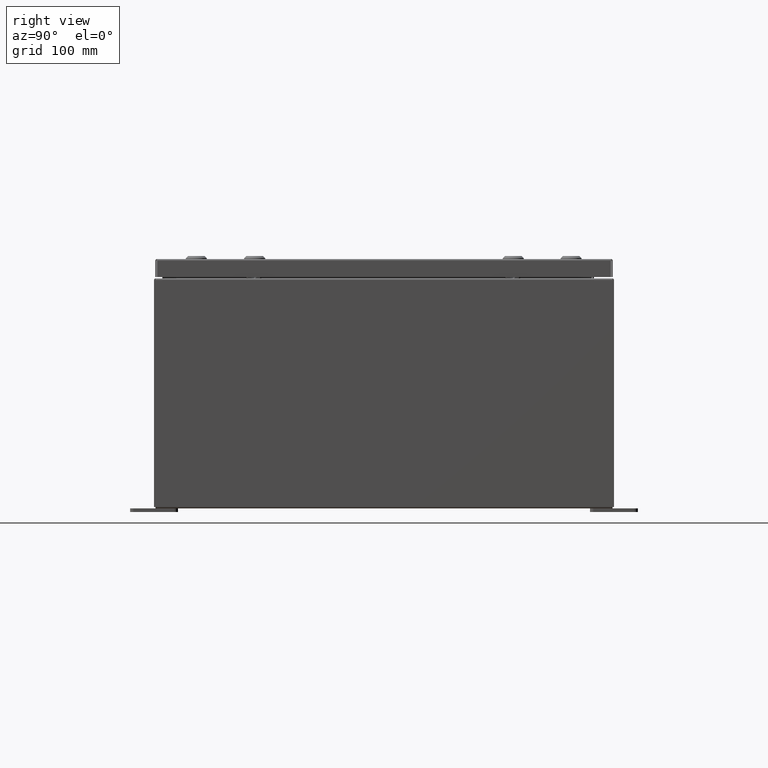
[diagram: clean part render]
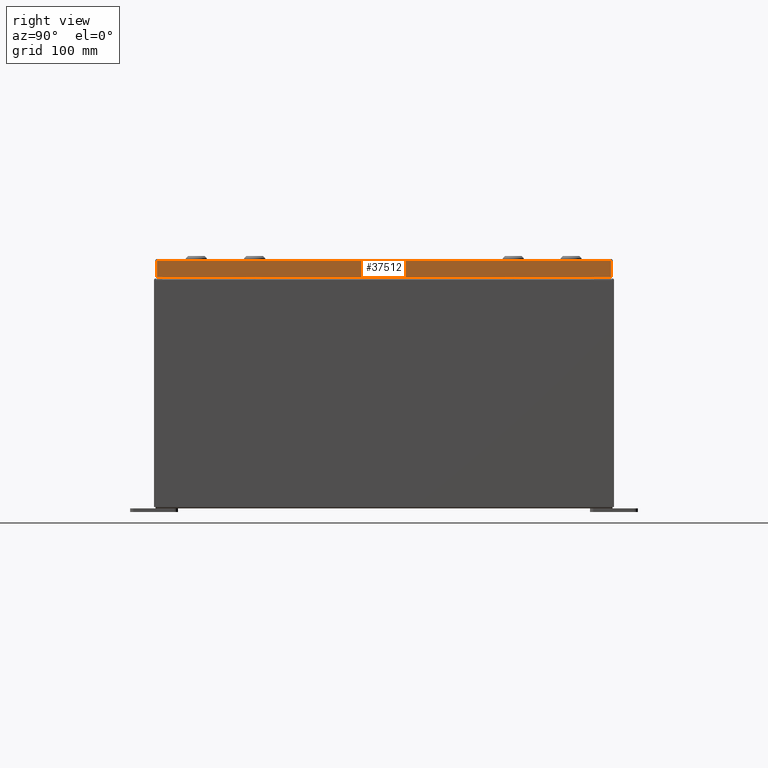
[diagram: same view with one face highlighted and labeled with its STEP entity id]
A machine part, right view. The second image highlights one B-rep face of the part: STEP entity #37512.
In plain terms, the highlighted planar face has unit normal (1, 0, 0).
Its self-contained STEP definition (entity closure, byte-faithful):
#5099 = PLANE ( 'NONE',  #23668 ) ;
#6279 = EDGE_LOOP ( 'NONE', ( #7154, #20017, #48862, #24199 ) ) ;
#7154 = ORIENTED_EDGE ( 'NONE', *, *, #16575, .F. ) ;
#7218 = EDGE_CURVE ( 'NONE', #47670, #18841, #22103, .T. ) ;
#9339 = CARTESIAN_POINT ( 'NONE',  ( 11.93750000000000200, -11.84865786437626200, -0.9376999999999997600 ) ) ;
#11504 = FACE_OUTER_BOUND ( 'NONE', #6279, .T. ) ;
#14924 = CARTESIAN_POINT ( 'NONE',  ( 11.93750000000000000, 0.0000000000000000000, 3.049157650594635900E-014 ) ) ;
#16575 = EDGE_CURVE ( 'NONE', #30847, #52859, #57467, .T. ) ;
#18159 = CARTESIAN_POINT ( 'NONE',  ( 11.93750000000000200, 11.84865786437627300, -0.9376999999999997600 ) ) ;
#18841 = VERTEX_POINT ( 'NONE', #58960 ) ;
#19888 = DIRECTION ( 'NONE',  ( 2.532419924601866100E-015, 0.0000000000000000000, -1.000000000000000000 ) ) ;
#20017 = ORIENTED_EDGE ( 'NONE', *, *, #50250, .F. ) ;
#20318 = LINE ( 'NONE', #31334, #31844 ) ;
#22103 = LINE ( 'NONE', #29341, #23656 ) ;
#23656 = VECTOR ( 'NONE', #46350, 39.37007874015748100 ) ;
#23668 = AXIS2_PLACEMENT_3D ( 'NONE', #14924, #49242, #19888 ) ;
#24199 = ORIENTED_EDGE ( 'NONE', *, *, #45522, .T. ) ;
#29341 = CARTESIAN_POINT ( 'NONE',  ( 11.93750000000000000, 11.84865786437626900, 1.132303121535597100E-013 ) ) ;
#30847 = VERTEX_POINT ( 'NONE', #9339 ) ;
#31334 = CARTESIAN_POINT ( 'NONE',  ( 11.93750000000000000, 0.0000000000000000000, -0.08770000000000008300 ) ) ;
#31844 = VECTOR ( 'NONE', #60663, 39.37007874015748100 ) ;
#34790 = DIRECTION ( 'NONE',  ( -2.532419924601866100E-015, -6.982962677686265900E-015, 1.000000000000000000 ) ) ;
#37512 = ADVANCED_FACE ( 'NONE', ( #11504 ), #5099, .T. ) ;
#43031 = VECTOR ( 'NONE', #57618, 39.37007874015748100 ) ;
#44432 = CARTESIAN_POINT ( 'NONE',  ( 11.93750000000000000, -11.84865786437626900, -0.07469999999999980800 ) ) ;
#44444 = VECTOR ( 'NONE', #34790, 39.37007874015748100 ) ;
#45522 = EDGE_CURVE ( 'NONE', #18841, #52859, #20318, .T. ) ;
#46350 = DIRECTION ( 'NONE',  ( -2.532419924601866100E-015, -6.982962677686265900E-015, 1.000000000000000000 ) ) ;
#47670 = VERTEX_POINT ( 'NONE', #18159 ) ;
#48862 = ORIENTED_EDGE ( 'NONE', *, *, #7218, .T. ) ;
#49242 = DIRECTION ( 'NONE',  ( 1.000000000000000000, 0.0000000000000000000, 2.532419924601866100E-015 ) ) ;
#50250 = EDGE_CURVE ( 'NONE', #47670, #30847, #57591, .T. ) ;
#52716 = CARTESIAN_POINT ( 'NONE',  ( 11.93750000000000200, -11.93750000000000000, -0.9376999999999997600 ) ) ;
#52859 = VERTEX_POINT ( 'NONE', #60833 ) ;
#57467 = LINE ( 'NONE', #44432, #44444 ) ;
#57591 = LINE ( 'NONE', #52716, #43031 ) ;
#57618 = DIRECTION ( 'NONE',  ( 0.0000000000000000000, -1.000000000000000000, 0.0000000000000000000 ) ) ;
#58960 = CARTESIAN_POINT ( 'NONE',  ( 11.93750000000000000, 11.84865786437626800, -0.08770000000000008300 ) ) ;
#60663 = DIRECTION ( 'NONE',  ( 0.0000000000000000000, -1.000000000000000000, 0.0000000000000000000 ) ) ;
#60833 = CARTESIAN_POINT ( 'NONE',  ( 11.93750000000000000, -11.84865786437626900, -0.08770000000000008300 ) ) ;